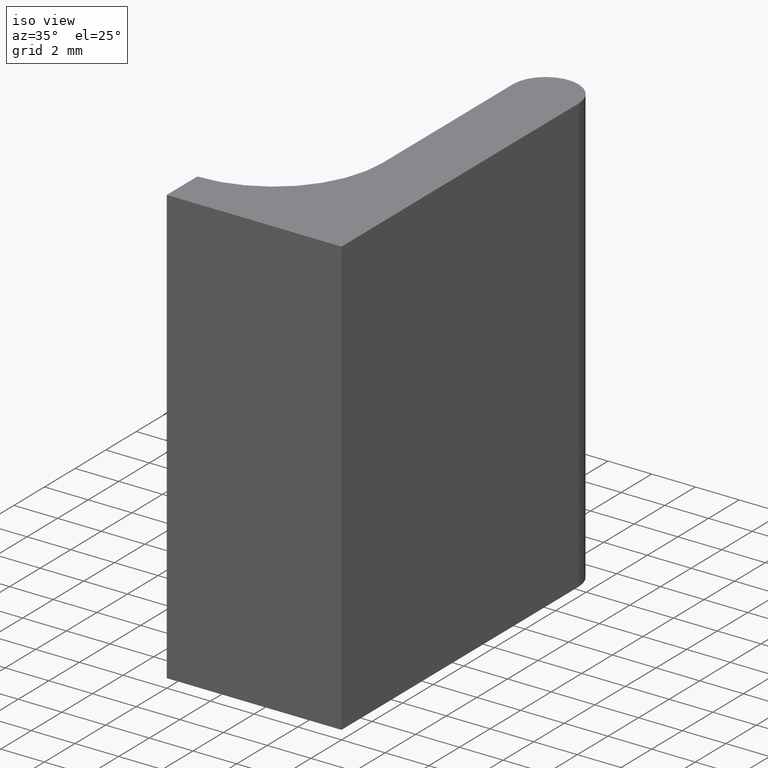
[diagram: clean part render]
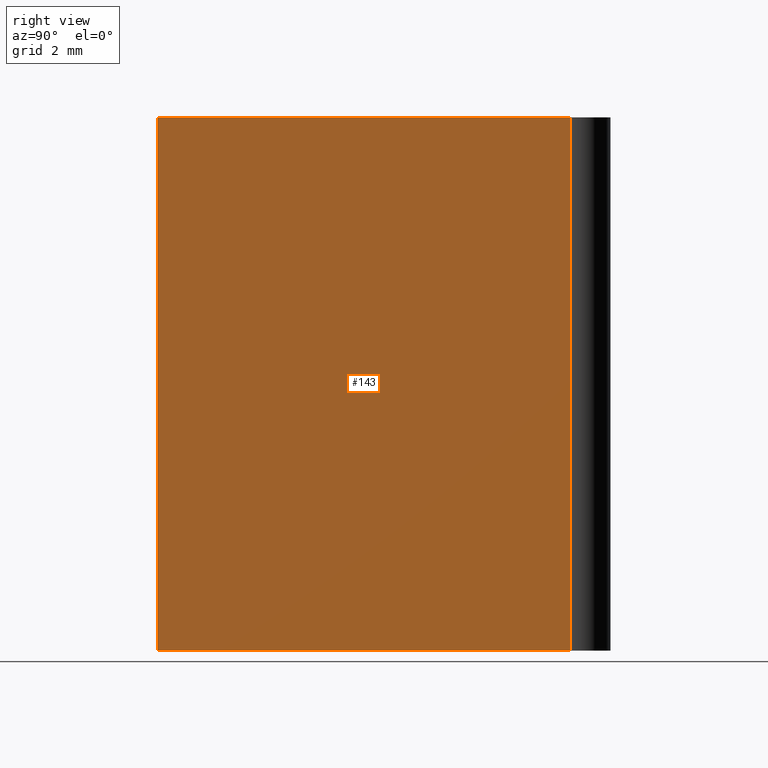
[diagram: tour spotlight — one face highlighted and labeled with its STEP entity id]
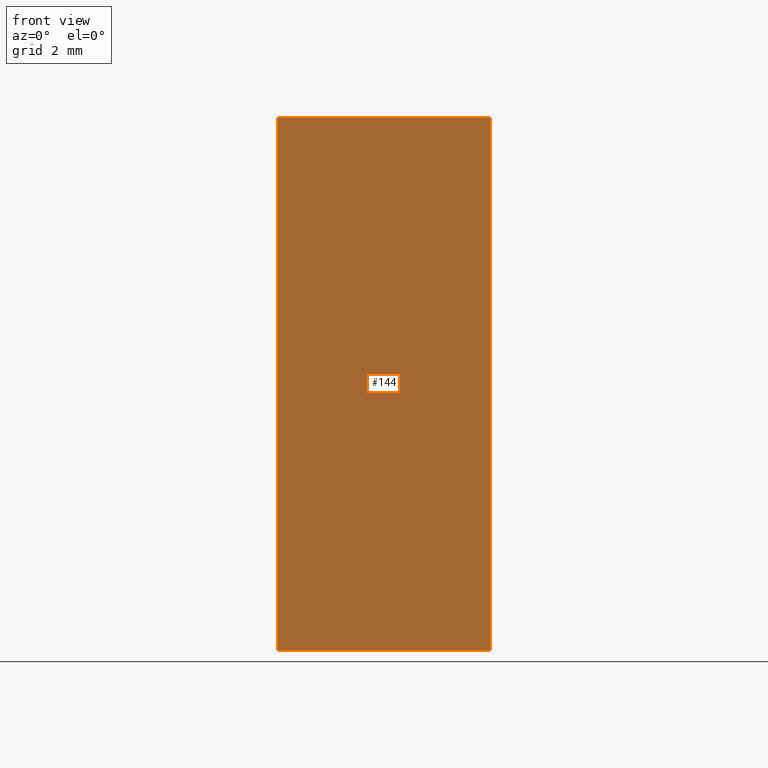
[diagram: tour spotlight — one face highlighted and labeled with its STEP entity id]
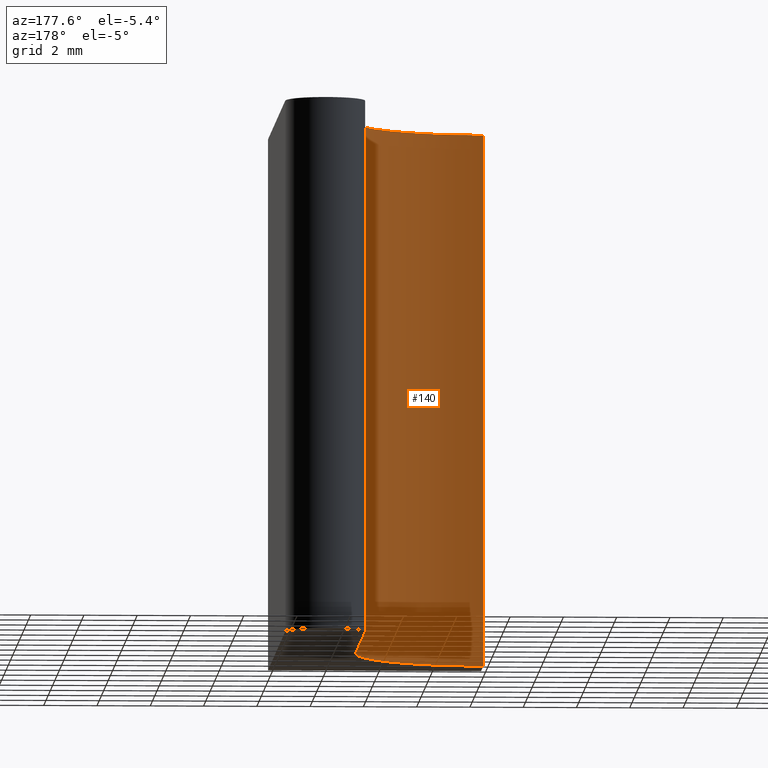
[diagram: tour spotlight — one face highlighted and labeled with its STEP entity id]
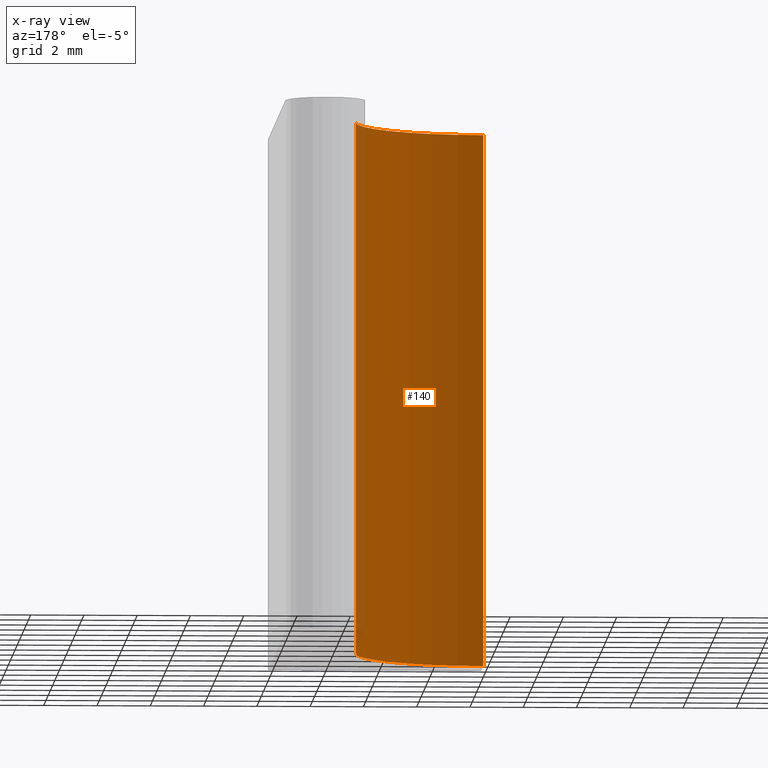
[diagram: x-ray of the same camera — body ghosted, this tour face saturated]
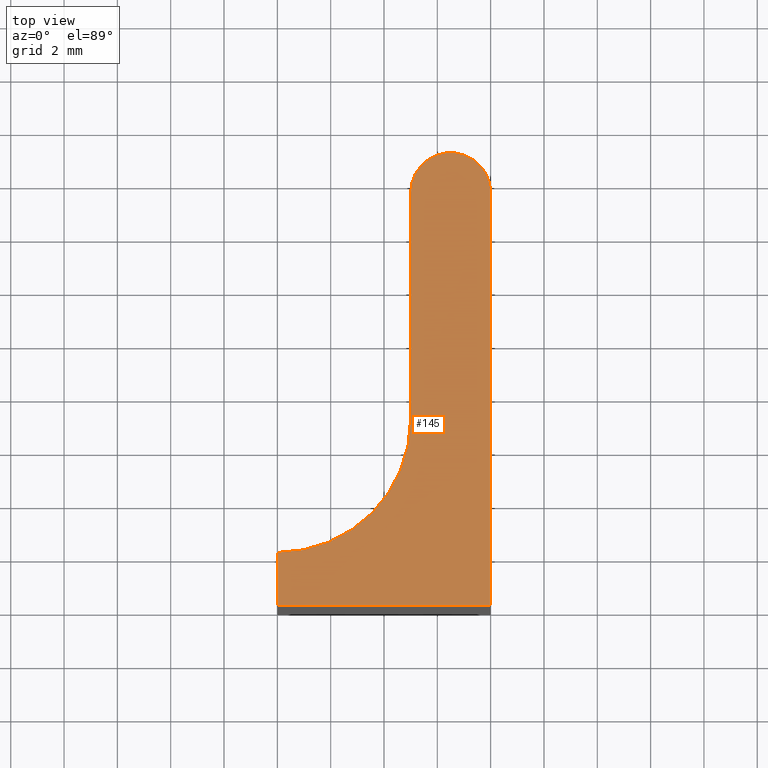
[diagram: tour spotlight — one face highlighted and labeled with its STEP entity id]
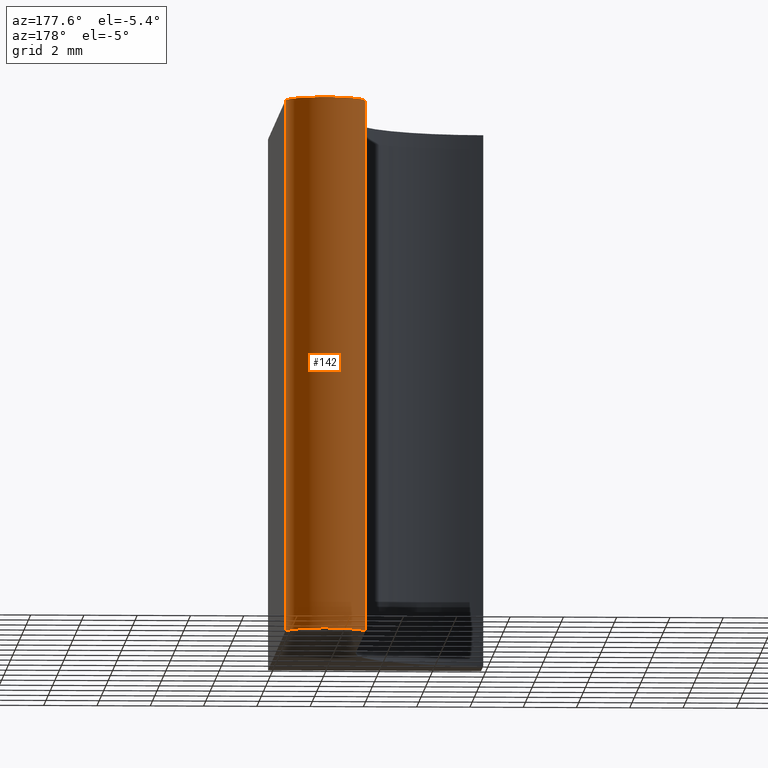
[diagram: tour spotlight — one face highlighted and labeled with its STEP entity id]
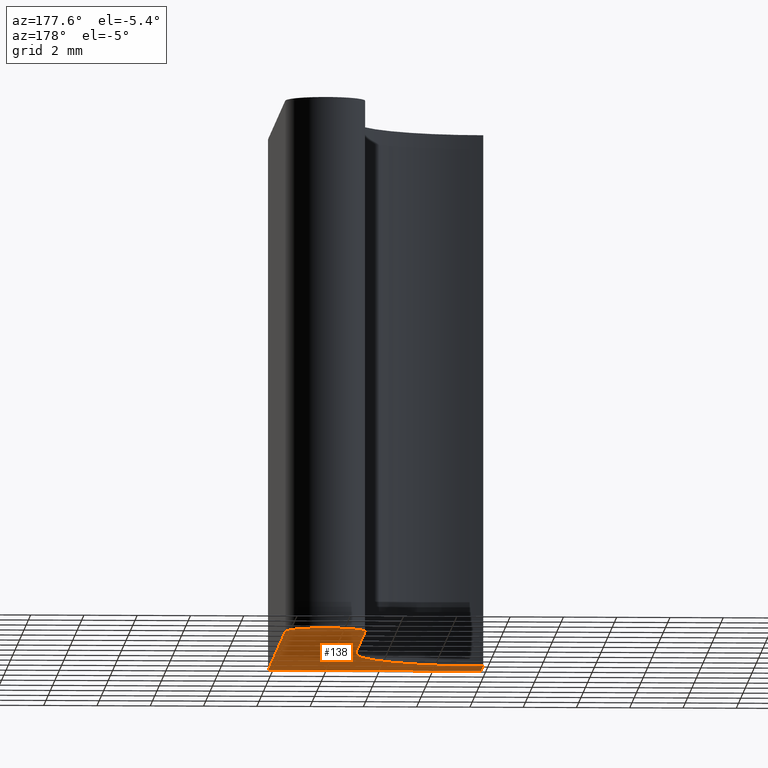
[diagram: tour spotlight — one face highlighted and labeled with its STEP entity id]
A machine part: a face-by-face anatomy tour. The part has 8 B-rep faces; the first image is the clean iso view, then the 6 largest visible faces are spotlighted one at a time (largest first), each with its STEP entity span.

Face 1 — right view, entity #143. In plain terms, the highlighted planar face has unit normal (1, 0, 0).
Definition (entity closure, byte-faithful):
#23=FACE_OUTER_BOUND('',#31,.T.);
#31=EDGE_LOOP('',(#118,#119,#120,#121));
#38=LINE('',#222,#52);
#48=LINE('',#249,#62);
#49=LINE('',#252,#63);
#50=LINE('',#253,#64);
#52=VECTOR('',#182,10.);
#62=VECTOR('',#208,10.);
#63=VECTOR('',#211,10.);
#64=VECTOR('',#212,10.);
#66=VERTEX_POINT('',#220);
#67=VERTEX_POINT('',#221);
#76=VERTEX_POINT('',#247);
#77=VERTEX_POINT('',#251);
#78=EDGE_CURVE('',#66,#67,#38,.T.);
#92=EDGE_CURVE('',#76,#67,#48,.T.);
#93=EDGE_CURVE('',#76,#77,#49,.T.);
#94=EDGE_CURVE('',#66,#77,#50,.T.);
#118=ORIENTED_EDGE('',*,*,#93,.T.);
#119=ORIENTED_EDGE('',*,*,#94,.F.);
#120=ORIENTED_EDGE('',*,*,#78,.T.);
#121=ORIENTED_EDGE('',*,*,#92,.F.);
#135=PLANE('',#175);
#143=ADVANCED_FACE('',(#23),#135,.T.);
#175=AXIS2_PLACEMENT_3D('',#250,#209,#210);
#182=DIRECTION('',(-2.93882565341953E-16,1.,0.));
#208=DIRECTION('',(0.,0.,-1.));
#209=DIRECTION('center_axis',(1.,2.93882565341953E-16,0.));
#210=DIRECTION('ref_axis',(0.,0.,-1.));
#211=DIRECTION('',(2.93882565341953E-16,-1.,0.));
#212=DIRECTION('',(0.,0.,1.));
#220=CARTESIAN_POINT('',(3.88578058618805E-15,2.22044604925031E-15,-10.));
#221=CARTESIAN_POINT('',(-6.69399176612227E-16,15.5,-10.));
#222=CARTESIAN_POINT('',(-6.69399176612227E-16,15.5,-10.));
#247=CARTESIAN_POINT('',(-6.69399176612227E-16,15.5,10.));
#249=CARTESIAN_POINT('',(-6.69399176612227E-16,15.5,0.));
#250=CARTESIAN_POINT('Origin',(-6.69399176612227E-16,15.5,0.));
#251=CARTESIAN_POINT('',(3.88578058618805E-15,2.22044604925031E-15,10.));
#252=CARTESIAN_POINT('',(-6.69399176612227E-16,15.5,10.));
#253=CARTESIAN_POINT('',(3.88578058618805E-15,2.22044604925031E-15,0.));

Face 2 — front view, entity #144. In plain terms, the highlighted planar face has unit normal (0, -1, 0).
Definition (entity closure, byte-faithful):
#24=FACE_OUTER_BOUND('',#32,.T.);
#32=EDGE_LOOP('',(#122,#123,#124,#125));
#39=LINE('',#224,#53);
#44=LINE('',#237,#58);
#50=LINE('',#253,#64);
#51=LINE('',#255,#65);
#53=VECTOR('',#183,10.);
#58=VECTOR('',#194,10.);
#64=VECTOR('',#212,10.);
#65=VECTOR('',#215,10.);
#66=VERTEX_POINT('',#220);
#68=VERTEX_POINT('',#223);
#72=VERTEX_POINT('',#233);
#77=VERTEX_POINT('',#251);
#79=EDGE_CURVE('',#68,#66,#39,.T.);
#86=EDGE_CURVE('',#72,#68,#44,.T.);
#94=EDGE_CURVE('',#66,#77,#50,.T.);
#95=EDGE_CURVE('',#77,#72,#51,.T.);
#122=ORIENTED_EDGE('',*,*,#95,.T.);
#123=ORIENTED_EDGE('',*,*,#86,.T.);
#124=ORIENTED_EDGE('',*,*,#79,.T.);
#125=ORIENTED_EDGE('',*,*,#94,.T.);
#136=PLANE('',#176);
#144=ADVANCED_FACE('',(#24),#136,.T.);
#176=AXIS2_PLACEMENT_3D('',#254,#213,#214);
#183=DIRECTION('',(1.,2.08166817117217E-16,0.));
#194=DIRECTION('',(0.,0.,-1.));
#212=DIRECTION('',(0.,0.,1.));
#213=DIRECTION('center_axis',(2.08166817117217E-16,-1.,0.));
#214=DIRECTION('ref_axis',(0.,0.,-1.));
#215=DIRECTION('',(-1.,-2.08166817117217E-16,0.));
#220=CARTESIAN_POINT('',(3.88578058618805E-15,2.22044604925031E-15,-10.));
#223=CARTESIAN_POINT('',(-8.,5.55111512312578E-16,-10.));
#224=CARTESIAN_POINT('',(3.88578058618805E-15,2.22044604925031E-15,-10.));
#233=CARTESIAN_POINT('',(-8.,5.55111512312578E-16,10.));
#237=CARTESIAN_POINT('',(-8.,5.55111512312578E-16,0.));
#251=CARTESIAN_POINT('',(3.88578058618805E-15,2.22044604925031E-15,10.));
#253=CARTESIAN_POINT('',(3.88578058618805E-15,2.22044604925031E-15,0.));
#254=CARTESIAN_POINT('Origin',(3.88578058618805E-15,2.22044604925031E-15,
0.));
#255=CARTESIAN_POINT('',(3.88578058618805E-15,2.22044604925031E-15,10.));

Face 3 — auxiliary view, entity #140. An x-ray twin of the same camera follows (body ghosted, this face saturated) — the face is partly hidden behind the body. In plain terms, the highlighted cylindrical surface (partial cylindrical patch) has radius 5 mm, axis along (0, 0, 1).
Definition (entity closure, byte-faithful):
#16=CYLINDRICAL_SURFACE('',#170,5.);
#20=FACE_OUTER_BOUND('',#28,.T.);
#28=EDGE_LOOP('',(#106,#107,#108,#109));
#34=CIRCLE('',#167,5.);
#36=CIRCLE('',#171,5.);
#43=LINE('',#236,#57);
#45=LINE('',#241,#59);
#57=VECTOR('',#193,10.);
#59=VECTOR('',#199,10.);
#69=VERTEX_POINT('',#225);
#70=VERTEX_POINT('',#227);
#73=VERTEX_POINT('',#234);
#74=VERTEX_POINT('',#239);
#81=EDGE_CURVE('',#70,#69,#34,.T.);
#85=EDGE_CURVE('',#73,#69,#43,.T.);
#87=EDGE_CURVE('',#73,#74,#36,.T.);
#88=EDGE_CURVE('',#74,#70,#45,.T.);
#106=ORIENTED_EDGE('',*,*,#87,.T.);
#107=ORIENTED_EDGE('',*,*,#88,.T.);
#108=ORIENTED_EDGE('',*,*,#81,.T.);
#109=ORIENTED_EDGE('',*,*,#85,.F.);
#140=ADVANCED_FACE('',(#20),#16,.F.);
#167=AXIS2_PLACEMENT_3D('',#228,#185,#186);
#170=AXIS2_PLACEMENT_3D('',#238,#195,#196);
#171=AXIS2_PLACEMENT_3D('',#240,#197,#198);
#185=DIRECTION('center_axis',(0.,0.,-1.));
#186=DIRECTION('ref_axis',(0.,-1.,0.));
#193=DIRECTION('',(0.,0.,-1.));
#195=DIRECTION('center_axis',(0.,0.,1.));
#196=DIRECTION('ref_axis',(0.,-1.,0.));
#197=DIRECTION('center_axis',(0.,0.,1.));
#198=DIRECTION('ref_axis',(0.,-1.,0.));
#199=DIRECTION('',(0.,0.,-1.));
#225=CARTESIAN_POINT('',(-8.,2.,-10.));
#227=CARTESIAN_POINT('',(-3.,7.,-10.));
#228=CARTESIAN_POINT('Origin',(-8.,7.,-10.));
#234=CARTESIAN_POINT('',(-8.,2.,10.));
#236=CARTESIAN_POINT('',(-8.,2.,0.));
#238=CARTESIAN_POINT('Origin',(-8.,7.,0.));
#239=CARTESIAN_POINT('',(-3.,7.,10.));
#240=CARTESIAN_POINT('Origin',(-8.,7.,10.));
#241=CARTESIAN_POINT('',(-3.,7.,0.));

Face 4 — top view, entity #145. In plain terms, the highlighted planar face has unit normal (0, 0, 1).
Definition (entity closure, byte-faithful):
#25=FACE_OUTER_BOUND('',#33,.T.);
#33=EDGE_LOOP('',(#126,#127,#128,#129,#130,#131));
#36=CIRCLE('',#171,5.);
#37=CIRCLE('',#174,1.5);
#42=LINE('',#235,#56);
#46=LINE('',#244,#60);
#49=LINE('',#252,#63);
#51=LINE('',#255,#65);
#56=VECTOR('',#192,10.);
#60=VECTOR('',#202,10.);
#63=VECTOR('',#211,10.);
#65=VECTOR('',#215,10.);
#72=VERTEX_POINT('',#233);
#73=VERTEX_POINT('',#234);
#74=VERTEX_POINT('',#239);
#75=VERTEX_POINT('',#243);
#76=VERTEX_POINT('',#247);
#77=VERTEX_POINT('',#251);
#84=EDGE_CURVE('',#72,#73,#42,.T.);
#87=EDGE_CURVE('',#73,#74,#36,.T.);
#89=EDGE_CURVE('',#74,#75,#46,.T.);
#91=EDGE_CURVE('',#75,#76,#37,.T.);
#93=EDGE_CURVE('',#76,#77,#49,.T.);
#95=EDGE_CURVE('',#77,#72,#51,.T.);
#126=ORIENTED_EDGE('',*,*,#84,.F.);
#127=ORIENTED_EDGE('',*,*,#95,.F.);
#128=ORIENTED_EDGE('',*,*,#93,.F.);
#129=ORIENTED_EDGE('',*,*,#91,.F.);
#130=ORIENTED_EDGE('',*,*,#89,.F.);
#131=ORIENTED_EDGE('',*,*,#87,.F.);
#137=PLANE('',#177);
#145=ADVANCED_FACE('',(#25),#137,.T.);
#171=AXIS2_PLACEMENT_3D('',#240,#197,#198);
#174=AXIS2_PLACEMENT_3D('',#248,#206,#207);
#177=AXIS2_PLACEMENT_3D('',#256,#216,#217);
#192=DIRECTION('',(0.,1.,0.));
#197=DIRECTION('center_axis',(0.,0.,1.));
#198=DIRECTION('ref_axis',(0.,-1.,0.));
#202=DIRECTION('',(-2.61228946970625E-16,1.,0.));
#206=DIRECTION('center_axis',(0.,0.,-1.));
#207=DIRECTION('ref_axis',(-1.,0.,0.));
#211=DIRECTION('',(2.93882565341953E-16,-1.,0.));
#215=DIRECTION('',(-1.,-2.08166817117217E-16,0.));
#216=DIRECTION('center_axis',(0.,0.,1.));
#217=DIRECTION('ref_axis',(1.,0.,0.));
#233=CARTESIAN_POINT('',(-8.,5.55111512312578E-16,10.));
#234=CARTESIAN_POINT('',(-8.,2.,10.));
#235=CARTESIAN_POINT('',(-8.,5.55111512312578E-16,10.));
#239=CARTESIAN_POINT('',(-3.,7.,10.));
#240=CARTESIAN_POINT('Origin',(-8.,7.,10.));
#243=CARTESIAN_POINT('',(-3.,15.5,10.));
#244=CARTESIAN_POINT('',(-3.,7.,10.));
#247=CARTESIAN_POINT('',(-6.69399176612227E-16,15.5,10.));
#248=CARTESIAN_POINT('Origin',(-1.5,15.5,10.));
#251=CARTESIAN_POINT('',(3.88578058618805E-15,2.22044604925031E-15,10.));
#252=CARTESIAN_POINT('',(-6.69399176612227E-16,15.5,10.));
#255=CARTESIAN_POINT('',(3.88578058618805E-15,2.22044604925031E-15,10.));
#256=CARTESIAN_POINT('Origin',(-2.55409465522422,6.98705064049426,10.));

Face 5 — auxiliary view, entity #142. In plain terms, the highlighted cylindrical surface (partial cylindrical patch) has radius 1.5 mm, axis along (0, 0, 1).
Definition (entity closure, byte-faithful):
#17=CYLINDRICAL_SURFACE('',#173,1.5);
#22=FACE_OUTER_BOUND('',#30,.T.);
#30=EDGE_LOOP('',(#114,#115,#116,#117));
#35=CIRCLE('',#168,1.5);
#37=CIRCLE('',#174,1.5);
#47=LINE('',#245,#61);
#48=LINE('',#249,#62);
#61=VECTOR('',#203,10.);
#62=VECTOR('',#208,10.);
#67=VERTEX_POINT('',#221);
#71=VERTEX_POINT('',#229);
#75=VERTEX_POINT('',#243);
#76=VERTEX_POINT('',#247);
#83=EDGE_CURVE('',#67,#71,#35,.T.);
#90=EDGE_CURVE('',#75,#71,#47,.T.);
#91=EDGE_CURVE('',#75,#76,#37,.T.);
#92=EDGE_CURVE('',#76,#67,#48,.T.);
#114=ORIENTED_EDGE('',*,*,#91,.T.);
#115=ORIENTED_EDGE('',*,*,#92,.T.);
#116=ORIENTED_EDGE('',*,*,#83,.T.);
#117=ORIENTED_EDGE('',*,*,#90,.F.);
#142=ADVANCED_FACE('',(#22),#17,.T.);
#168=AXIS2_PLACEMENT_3D('',#231,#188,#189);
#173=AXIS2_PLACEMENT_3D('',#246,#204,#205);
#174=AXIS2_PLACEMENT_3D('',#248,#206,#207);
#188=DIRECTION('center_axis',(0.,0.,1.));
#189=DIRECTION('ref_axis',(-1.,0.,0.));
#203=DIRECTION('',(0.,0.,-1.));
#204=DIRECTION('center_axis',(0.,0.,1.));
#205=DIRECTION('ref_axis',(-1.,0.,0.));
#206=DIRECTION('center_axis',(0.,0.,-1.));
#207=DIRECTION('ref_axis',(-1.,0.,0.));
#208=DIRECTION('',(0.,0.,-1.));
#221=CARTESIAN_POINT('',(-6.69399176612227E-16,15.5,-10.));
#229=CARTESIAN_POINT('',(-3.,15.5,-10.));
#231=CARTESIAN_POINT('Origin',(-1.5,15.5,-10.));
#243=CARTESIAN_POINT('',(-3.,15.5,10.));
#245=CARTESIAN_POINT('',(-3.,15.5,0.));
#246=CARTESIAN_POINT('Origin',(-1.5,15.5,0.));
#247=CARTESIAN_POINT('',(-6.69399176612227E-16,15.5,10.));
#248=CARTESIAN_POINT('Origin',(-1.5,15.5,10.));
#249=CARTESIAN_POINT('',(-6.69399176612227E-16,15.5,0.));

Face 6 — auxiliary view, entity #138. In plain terms, the highlighted planar face has unit normal (0, 0, 1).
Definition (entity closure, byte-faithful):
#18=FACE_OUTER_BOUND('',#26,.T.);
#26=EDGE_LOOP('',(#96,#97,#98,#99,#100,#101));
#34=CIRCLE('',#167,5.);
#35=CIRCLE('',#168,1.5);
#38=LINE('',#222,#52);
#39=LINE('',#224,#53);
#40=LINE('',#226,#54);
#41=LINE('',#230,#55);
#52=VECTOR('',#182,10.);
#53=VECTOR('',#183,10.);
#54=VECTOR('',#184,10.);
#55=VECTOR('',#187,10.);
#66=VERTEX_POINT('',#220);
#67=VERTEX_POINT('',#221);
#68=VERTEX_POINT('',#223);
#69=VERTEX_POINT('',#225);
#70=VERTEX_POINT('',#227);
#71=VERTEX_POINT('',#229);
#78=EDGE_CURVE('',#66,#67,#38,.T.);
#79=EDGE_CURVE('',#68,#66,#39,.T.);
#80=EDGE_CURVE('',#69,#68,#40,.T.);
#81=EDGE_CURVE('',#70,#69,#34,.T.);
#82=EDGE_CURVE('',#71,#70,#41,.T.);
#83=EDGE_CURVE('',#67,#71,#35,.T.);
#96=ORIENTED_EDGE('',*,*,#78,.F.);
#97=ORIENTED_EDGE('',*,*,#79,.F.);
#98=ORIENTED_EDGE('',*,*,#80,.F.);
#99=ORIENTED_EDGE('',*,*,#81,.F.);
#100=ORIENTED_EDGE('',*,*,#82,.F.);
#101=ORIENTED_EDGE('',*,*,#83,.F.);
#132=PLANE('',#166);
#138=ADVANCED_FACE('',(#18),#132,.F.);
#166=AXIS2_PLACEMENT_3D('',#219,#180,#181);
#167=AXIS2_PLACEMENT_3D('',#228,#185,#186);
#168=AXIS2_PLACEMENT_3D('',#231,#188,#189);
#180=DIRECTION('center_axis',(0.,0.,1.));
#181=DIRECTION('ref_axis',(1.,0.,0.));
#182=DIRECTION('',(-2.93882565341953E-16,1.,0.));
#183=DIRECTION('',(1.,2.08166817117217E-16,0.));
#184=DIRECTION('',(0.,-1.,0.));
#185=DIRECTION('center_axis',(0.,0.,-1.));
#186=DIRECTION('ref_axis',(0.,-1.,0.));
#187=DIRECTION('',(2.61228946970625E-16,-1.,0.));
#188=DIRECTION('center_axis',(0.,0.,1.));
#189=DIRECTION('ref_axis',(-1.,0.,0.));
#219=CARTESIAN_POINT('Origin',(-2.55409465522422,6.98705064049425,-10.));
#220=CARTESIAN_POINT('',(3.88578058618805E-15,2.22044604925031E-15,-10.));
#221=CARTESIAN_POINT('',(-6.69399176612227E-16,15.5,-10.));
#222=CARTESIAN_POINT('',(-6.69399176612227E-16,15.5,-10.));
#223=CARTESIAN_POINT('',(-8.,5.55111512312578E-16,-10.));
#224=CARTESIAN_POINT('',(3.88578058618805E-15,2.22044604925031E-15,-10.));
#225=CARTESIAN_POINT('',(-8.,2.,-10.));
#226=CARTESIAN_POINT('',(-8.,5.55111512312578E-16,-10.));
#227=CARTESIAN_POINT('',(-3.,7.,-10.));
#228=CARTESIAN_POINT('Origin',(-8.,7.,-10.));
#229=CARTESIAN_POINT('',(-3.,15.5,-10.));
#230=CARTESIAN_POINT('',(-3.,7.,-10.));
#231=CARTESIAN_POINT('Origin',(-1.5,15.5,-10.));